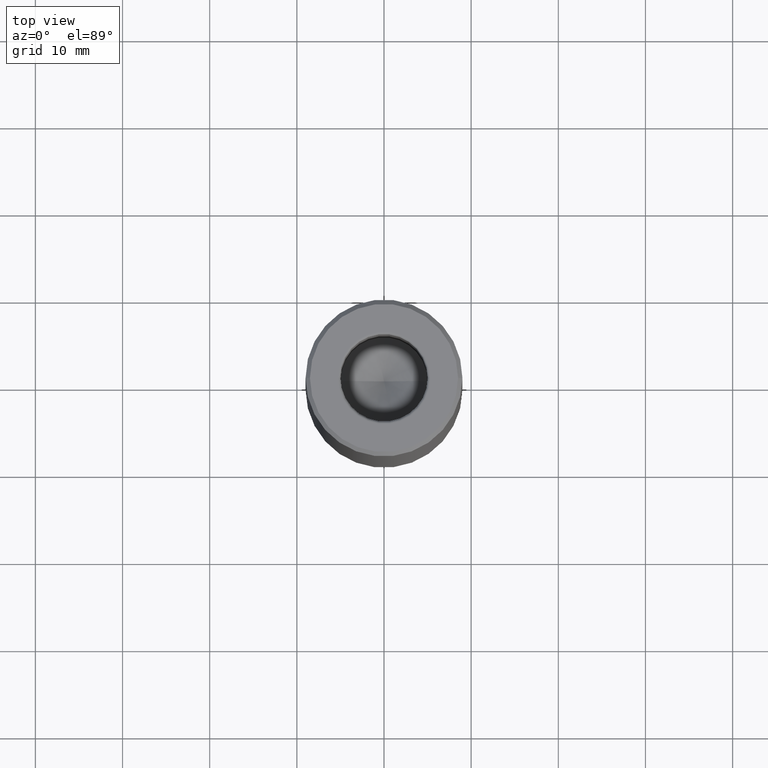
[diagram: clean part render]
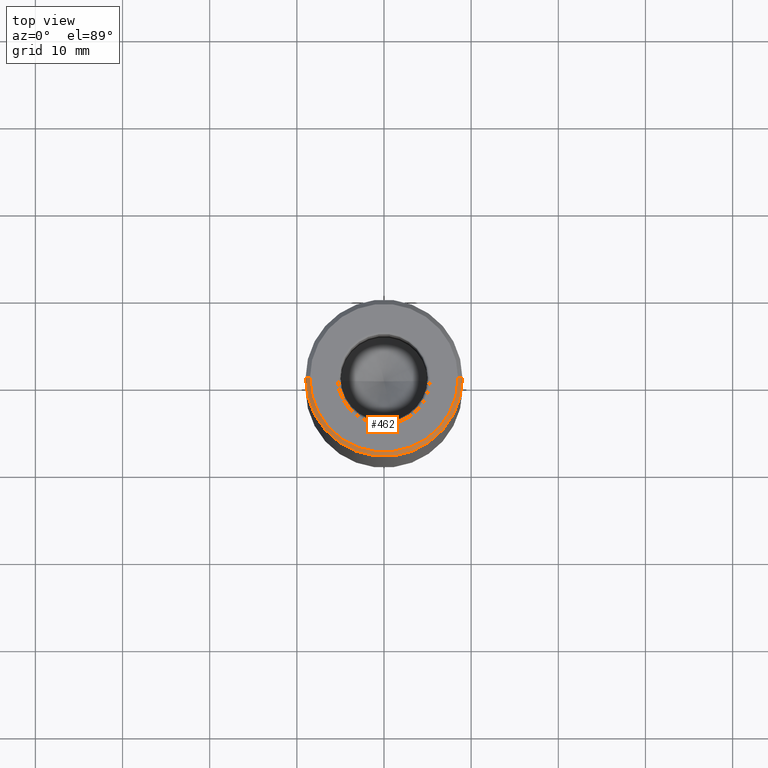
[diagram: same view with one face highlighted and labeled with its STEP entity id]
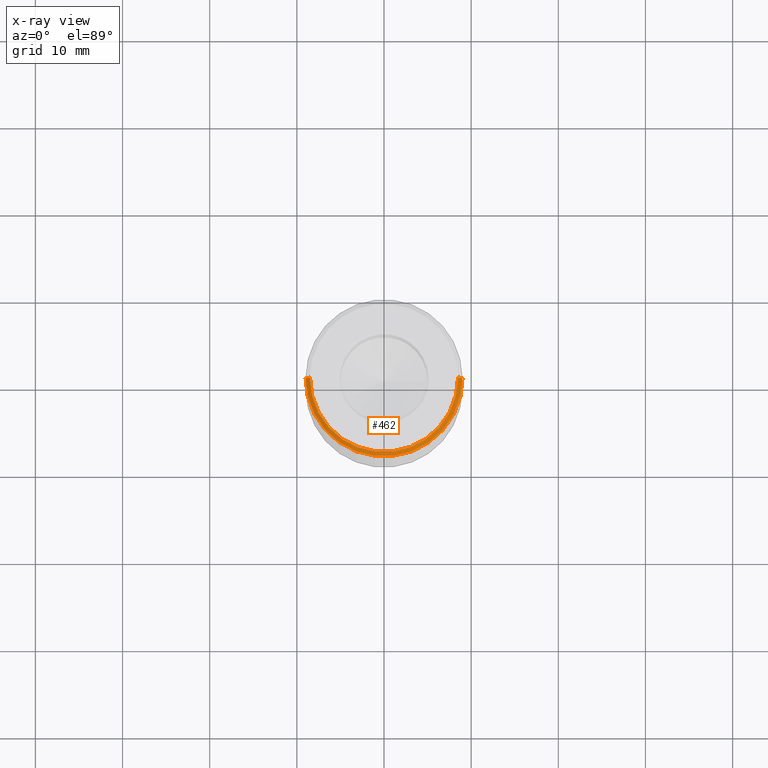
[diagram: x-ray of the same camera — body ghosted, the highlighted face saturated]
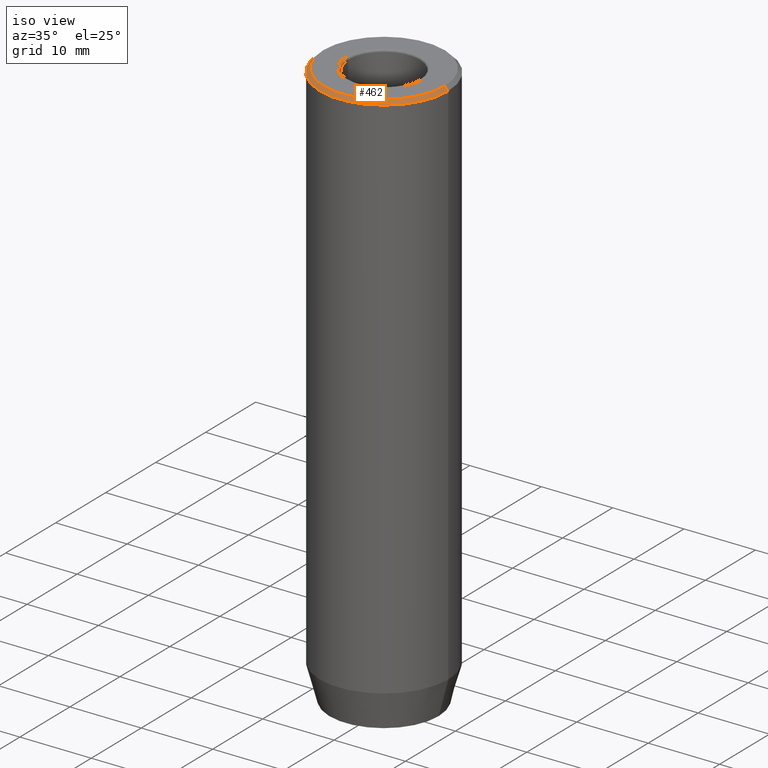
[diagram: same view with one face highlighted and labeled with its STEP entity id]
A machine part, top view. The second image highlights one B-rep face of the part: STEP entity #462.
The next image is the same camera in x-ray: the body ghosted, the highlighted face saturated — about 0% of this face is hidden behind the body in this view.
A second angle (iso view) of the same face is appended — the face is thin or edge-on in the first view.
In plain terms, the highlighted conical surface has half-angle 45 deg.
Its self-contained STEP definition (entity closure, byte-faithful):
#6 = CARTESIAN_POINT ( 'NONE',  ( -8.500000000000000000, 0.000000000000000000, 0.000000000000000000 ) ) ;
#16 = DIRECTION ( 'NONE',  ( -0.000000000000000000, -0.000000000000000000, 1.000000000000000000 ) ) ;
#20 = DIRECTION ( 'NONE',  ( 1.000000000000000000, 0.000000000000000000, 0.000000000000000000 ) ) ;
#71 = VERTEX_POINT ( 'NONE', #103 ) ;
#72 = CARTESIAN_POINT ( 'NONE',  ( 0.000000000000000000, 0.000000000000000000, 0.000000000000000000 ) ) ;
#76 = CARTESIAN_POINT ( 'NONE',  ( -8.500000000000000000, 0.000000000000000000, 0.000000000000000000 ) ) ;
#84 = EDGE_CURVE ( 'NONE', #515, #491, #254, .T. ) ;
#101 = CIRCLE ( 'NONE', #312, 9.000000000000000000 ) ;
#103 = CARTESIAN_POINT ( 'NONE',  ( 9.000000000000000000, 0.000000000000000000, -0.5000000000000023315 ) ) ;
#135 = ORIENTED_EDGE ( 'NONE', *, *, #238, .F. ) ;
#152 = DIRECTION ( 'NONE',  ( -0.7071067811865450192, 0.000000000000000000, -0.7071067811865500152 ) ) ;
#168 = CARTESIAN_POINT ( 'NONE',  ( -9.000000000000000000, 1.102182119232617714E-15, -0.5000000000000023315 ) ) ;
#185 = ORIENTED_EDGE ( 'NONE', *, *, #283, .F. ) ;
#214 = AXIS2_PLACEMENT_3D ( 'NONE', #469, #16, #20 ) ;
#223 = CARTESIAN_POINT ( 'NONE',  ( 0.000000000000000000, 0.000000000000000000, -0.5000000000000023315 ) ) ;
#238 = EDGE_CURVE ( 'NONE', #71, #491, #101, .T. ) ;
#254 = LINE ( 'NONE', #6, #436 ) ;
#268 = DIRECTION ( 'NONE',  ( 1.000000000000000000, 0.000000000000000000, 0.000000000000000000 ) ) ;
#273 = DIRECTION ( 'NONE',  ( 0.000000000000000000, 0.000000000000000000, -1.000000000000000000 ) ) ;
#283 = EDGE_CURVE ( 'NONE', #568, #71, #560, .T. ) ;
#291 = CONICAL_SURFACE ( 'NONE', #454, 8.500000000000000000, 0.7853981633974447263 ) ;
#312 = AXIS2_PLACEMENT_3D ( 'NONE', #223, #359, #268 ) ;
#359 = DIRECTION ( 'NONE',  ( 0.000000000000000000, 0.000000000000000000, -1.000000000000000000 ) ) ;
#373 = DIRECTION ( 'NONE',  ( 0.7071067811865450192, 8.659560562354902043E-17, -0.7071067811865500152 ) ) ;
#380 = CARTESIAN_POINT ( 'NONE',  ( 8.500000000000000000, 1.071565949253933927E-15, 0.000000000000000000 ) ) ;
#392 = EDGE_CURVE ( 'NONE', #515, #568, #403, .T. ) ;
#403 = CIRCLE ( 'NONE', #214, 8.500000000000000000 ) ;
#411 = VECTOR ( 'NONE', #373, 1000.000000000000000 ) ;
#436 = VECTOR ( 'NONE', #152, 1000.000000000000000 ) ;
#454 = AXIS2_PLACEMENT_3D ( 'NONE', #72, #273, #472 ) ;
#462 = ADVANCED_FACE ( 'NONE', ( #516 ), #291, .T. ) ;
#469 = CARTESIAN_POINT ( 'NONE',  ( 0.000000000000000000, 0.000000000000000000, 0.000000000000000000 ) ) ;
#472 = DIRECTION ( 'NONE',  ( -1.000000000000000000, 0.000000000000000000, 0.000000000000000000 ) ) ;
#491 = VERTEX_POINT ( 'NONE', #168 ) ;
#494 = ORIENTED_EDGE ( 'NONE', *, *, #84, .T. ) ;
#512 = CARTESIAN_POINT ( 'NONE',  ( 8.500000000000000000, 1.040949779275250140E-15, 0.000000000000000000 ) ) ;
#515 = VERTEX_POINT ( 'NONE', #76 ) ;
#516 = FACE_OUTER_BOUND ( 'NONE', #628, .T. ) ;
#560 = LINE ( 'NONE', #512, #411 ) ;
#568 = VERTEX_POINT ( 'NONE', #380 ) ;
#628 = EDGE_LOOP ( 'NONE', ( #185, #632, #494, #135 ) ) ;
#632 = ORIENTED_EDGE ( 'NONE', *, *, #392, .F. ) ;